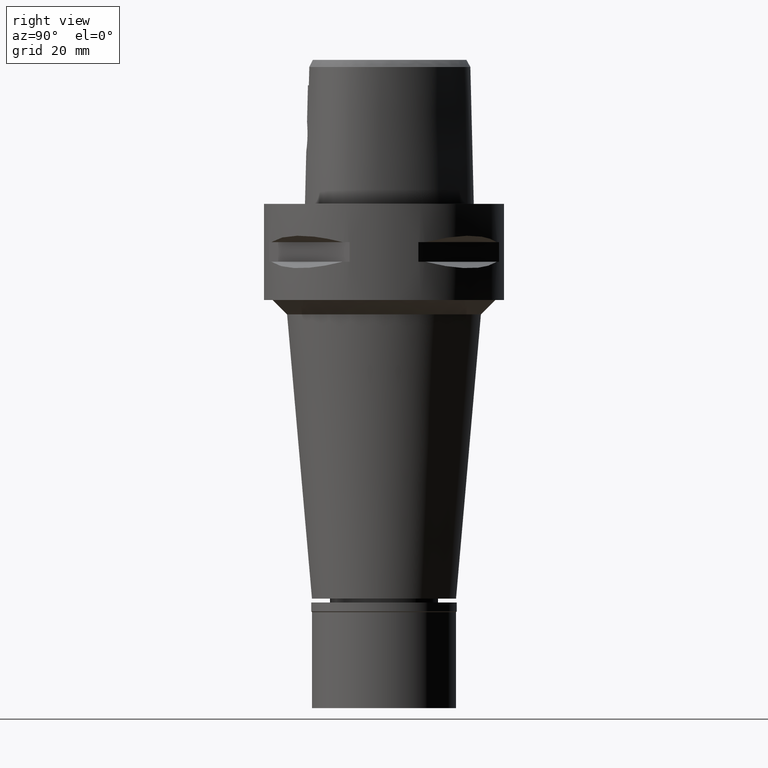
[diagram: clean part render]
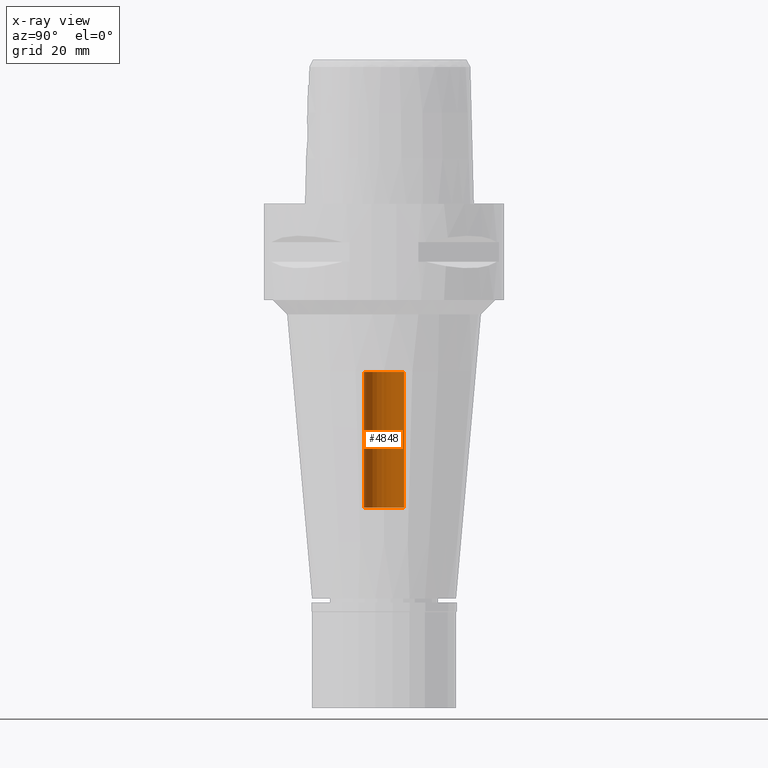
[diagram: x-ray — body ghosted, one internal face saturated and labeled with its STEP entity id]
A machine part, right view, then the same camera in x-ray: the body is ghosted and one INTERNAL B-rep face — a face not visible from any outside direction — is saturated and labeled: STEP entity #4848.
In plain terms, the highlighted cylindrical surface (edge-blend (fillet) strip) has radius 4.2 mm, axis along (0, 0, -1).
Its self-contained STEP definition (entity closure, byte-faithful):
#2 = DIRECTION ( 'NONE',  ( 0.0000000000000000000, 0.0000000000000000000, 1.000000000000000000 ) ) ;
#125 = CIRCLE ( 'NONE', #767, 4.200000000000000178 ) ;
#376 = DIRECTION ( 'NONE',  ( 0.0000000000000000000, 0.0000000000000000000, 1.000000000000000000 ) ) ;
#520 = ORIENTED_EDGE ( 'NONE', *, *, #2044, .T. ) ;
#662 = EDGE_CURVE ( 'NONE', #2936, #4119, #1454, .T. ) ;
#767 = AXIS2_PLACEMENT_3D ( 'NONE', #3259, #4084, #4787 ) ;
#813 = CARTESIAN_POINT ( 'NONE',  ( 0.0000000000000000000, -4.200000000000000178, -63.29999999999999716 ) ) ;
#863 = CARTESIAN_POINT ( 'NONE',  ( 0.0000000000000000000, 1.284838189324999924E-14, 4.915000000000000036 ) ) ;
#1113 = VERTEX_POINT ( 'NONE', #4199 ) ;
#1136 = DIRECTION ( 'NONE',  ( 0.0000000000000000000, 1.000000000000000000, 0.0000000000000000000 ) ) ;
#1174 = CARTESIAN_POINT ( 'NONE',  ( 0.0000000000000000000, -4.200000000000000178, -35.00000000000000000 ) ) ;
#1347 = AXIS2_PLACEMENT_3D ( 'NONE', #2238, #2, #1136 ) ;
#1454 = LINE ( 'NONE', #3027, #3902 ) ;
#1460 = CARTESIAN_POINT ( 'NONE',  ( 0.0000000000000000000, 4.200000000000000178, -63.29999999999999716 ) ) ;
#1712 = EDGE_CURVE ( 'NONE', #2146, #1113, #4173, .T. ) ;
#2015 = EDGE_LOOP ( 'NONE', ( #520, #2593, #4359, #3197 ) ) ;
#2019 = FACE_OUTER_BOUND ( 'NONE', #2015, .T. ) ;
#2044 = EDGE_CURVE ( 'NONE', #1113, #4119, #3504, .T. ) ;
#2146 = VERTEX_POINT ( 'NONE', #1460 ) ;
#2238 = CARTESIAN_POINT ( 'NONE',  ( 0.0000000000000000000, 1.284838189324999924E-14, -35.00000000000000000 ) ) ;
#2593 = ORIENTED_EDGE ( 'NONE', *, *, #662, .F. ) ;
#2813 = CYLINDRICAL_SURFACE ( 'NONE', #3825, 4.200000000000000178 ) ;
#2936 = VERTEX_POINT ( 'NONE', #813 ) ;
#3017 = DIRECTION ( 'NONE',  ( 0.0000000000000000000, 0.0000000000000000000, 1.000000000000000000 ) ) ;
#3027 = CARTESIAN_POINT ( 'NONE',  ( 0.0000000000000000000, -4.200000000000000178, -63.29999999999999716 ) ) ;
#3197 = ORIENTED_EDGE ( 'NONE', *, *, #1712, .T. ) ;
#3259 = CARTESIAN_POINT ( 'NONE',  ( 0.0000000000000000000, 1.284838189324999924E-14, -63.29999999999999716 ) ) ;
#3343 = VECTOR ( 'NONE', #3017, 1000.000000000000000 ) ;
#3351 = EDGE_CURVE ( 'NONE', #2936, #2146, #125, .T. ) ;
#3504 = CIRCLE ( 'NONE', #1347, 4.200000000000000178 ) ;
#3825 = AXIS2_PLACEMENT_3D ( 'NONE', #863, #4669, #4745 ) ;
#3902 = VECTOR ( 'NONE', #376, 1000.000000000000000 ) ;
#4084 = DIRECTION ( 'NONE',  ( 0.0000000000000000000, 0.0000000000000000000, -1.000000000000000000 ) ) ;
#4119 = VERTEX_POINT ( 'NONE', #1174 ) ;
#4173 = LINE ( 'NONE', #4626, #3343 ) ;
#4199 = CARTESIAN_POINT ( 'NONE',  ( 0.0000000000000000000, 4.200000000000000178, -35.00000000000000000 ) ) ;
#4359 = ORIENTED_EDGE ( 'NONE', *, *, #3351, .T. ) ;
#4626 = CARTESIAN_POINT ( 'NONE',  ( 0.0000000000000000000, 4.200000000000000178, -63.29999999999999716 ) ) ;
#4669 = DIRECTION ( 'NONE',  ( 0.0000000000000000000, 0.0000000000000000000, -1.000000000000000000 ) ) ;
#4745 = DIRECTION ( 'NONE',  ( 0.0000000000000000000, -1.000000000000000000, 0.0000000000000000000 ) ) ;
#4787 = DIRECTION ( 'NONE',  ( 0.0000000000000000000, -1.000000000000000000, 0.0000000000000000000 ) ) ;
#4848 = ADVANCED_FACE ( 'NONE', ( #2019 ), #2813, .F. ) ;